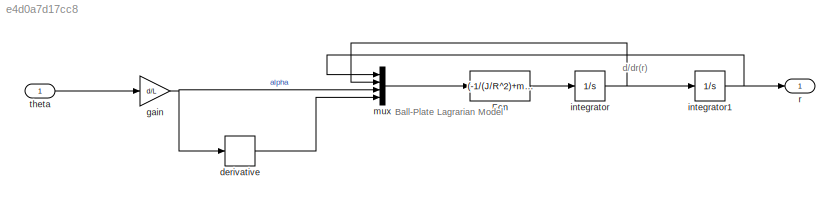
MODEL slx_e4d0a7d17cc8
KIND model
CONFIG AbsTol = auto
CONFIG EnableMultiTasking = off
CONFIG FixedStep = auto
CONFIG MaxStep = auto
CONFIG MinStep = auto
CONFIG RelTol = 1e-3
CONFIG SampleTimeConstraint = Unconstrained
CONFIG Solver = VariableStepAuto
CONFIG SolverName = VariableStepAuto
CONFIG StartTime = 0.0
CONFIG StopTime = 10.0
BLOCK [Fcn] Fcn
  Expr = (-1/(J/R^2)+m))*(m*g*sin(u[3])-m*u[1]*(u[4])^2)
BLOCK [Derivative] derivative
BLOCK [Gain] gain
  Gain = d/L
BLOCK [Integrator] integrator
  Ports = [1, 1]
BLOCK [Integrator] integrator1
  Ports = [1, 1]
BLOCK [Mux] mux
  DisplayOption = bar
  Ports = [4, 1]
BLOCK [Outport] r
BLOCK [Inport] theta
ANNOTATION (root): Ball-Plate Lagrarian Model
ANNOTATION (root): d/dr(r)
LINE Fcn:1 -> integrator:1
LINE derivative:1 -> mux:4
NET gain:1 -> derivative:1, mux:3
NET integrator1:1 -> mux:1, r:1
NET integrator:1 -> integrator1:1, mux:2
LINE mux:1 -> Fcn:1
LINE theta:1 -> gain:1
note: NET lines group one-source signal fan-out (src -> all destinations, sorted); 1:1 wires keep LINE
